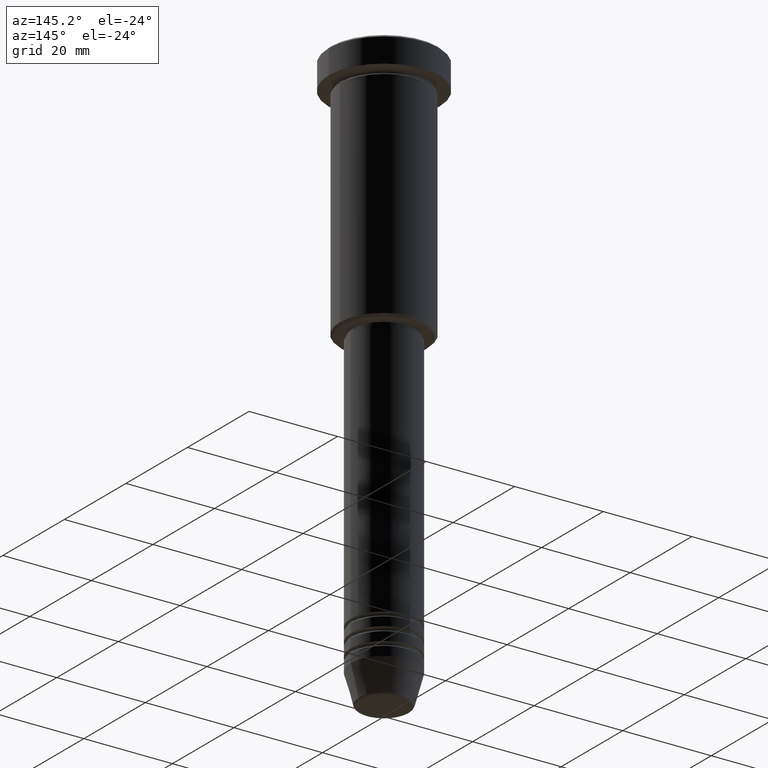
[diagram: clean part render]
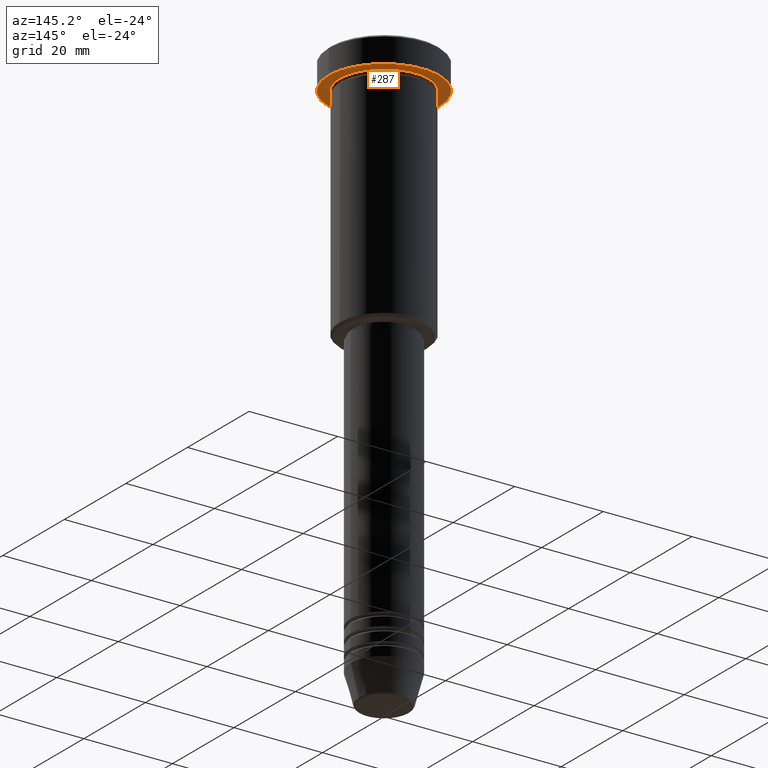
[diagram: same view with one face highlighted and labeled with its STEP entity id]
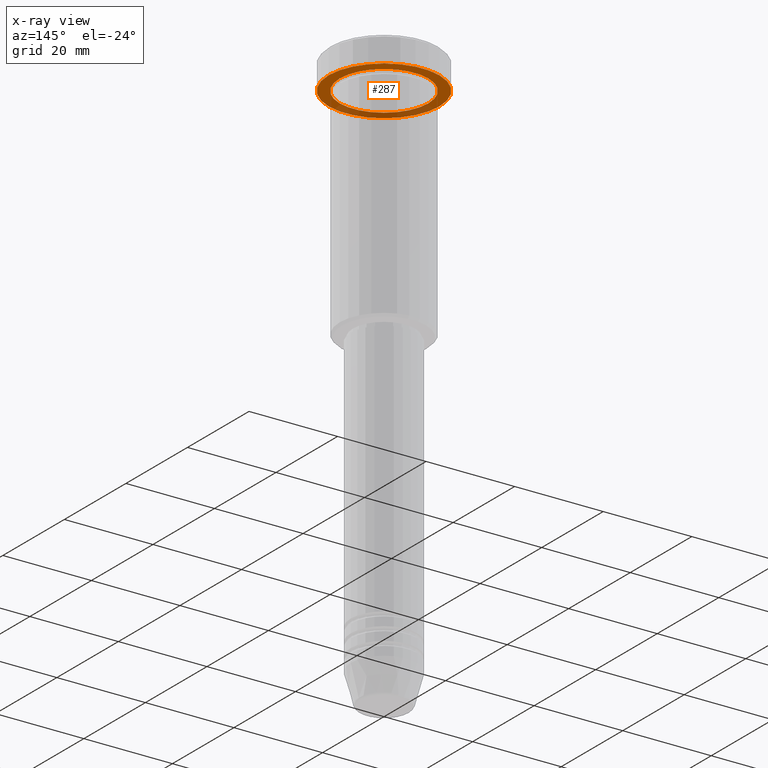
[diagram: x-ray of the same camera — body ghosted, the highlighted face saturated]
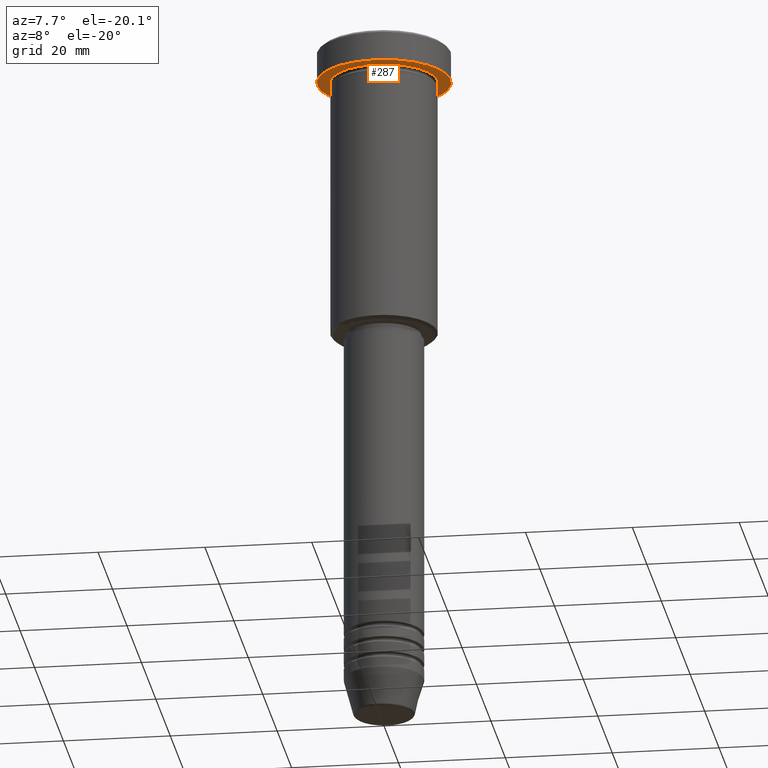
[diagram: same view with one face highlighted and labeled with its STEP entity id]
A machine part, auxiliary view. The second image highlights one B-rep face of the part: STEP entity #287.
The next image is the same camera in x-ray: the body ghosted, the highlighted face saturated — about 28% of this face is hidden behind the body in this view.
A second angle (auxiliary view) of the same face is appended — the face is thin or edge-on in the first view.
In plain terms, the highlighted planar face has unit normal (0, 0, -1).
Its self-contained STEP definition (entity closure, byte-faithful):
#5 = DIRECTION ( 'NONE',  ( -0.000000000000000000, -0.000000000000000000, 1.000000000000000000 ) ) ;
#18 = DIRECTION ( 'NONE',  ( -1.000000000000000000, 0.000000000000000000, -0.000000000000000000 ) ) ;
#25 = EDGE_LOOP ( 'NONE', ( #755, #762 ) ) ;
#47 = CIRCLE ( 'NONE', #717, 10.00000000000000000 ) ;
#61 = CARTESIAN_POINT ( 'NONE',  ( 10.00000000000000000, 1.224646799147353256E-15, -5.999999999999996447 ) ) ;
#115 = CIRCLE ( 'NONE', #768, 12.50000000000000000 ) ;
#116 = PLANE ( 'NONE',  #232 ) ;
#167 = DIRECTION ( 'NONE',  ( -0.000000000000000000, -0.000000000000000000, 1.000000000000000000 ) ) ;
#187 = EDGE_CURVE ( 'NONE', #1022, #882, #115, .T. ) ;
#232 = AXIS2_PLACEMENT_3D ( 'NONE', #1021, #1086, #18 ) ;
#265 = CARTESIAN_POINT ( 'NONE',  ( 0.000000000000000000, 0.000000000000000000, -5.999999999999996447 ) ) ;
#275 = AXIS2_PLACEMENT_3D ( 'NONE', #943, #5, #371 ) ;
#287 = ADVANCED_FACE ( 'NONE', ( #994, #1175 ), #116, .T. ) ;
#321 = DIRECTION ( 'NONE',  ( 1.000000000000000000, 0.000000000000000000, 0.000000000000000000 ) ) ;
#371 = DIRECTION ( 'NONE',  ( -1.000000000000000000, 0.000000000000000000, 0.000000000000000000 ) ) ;
#393 = CARTESIAN_POINT ( 'NONE',  ( 0.000000000000000000, 0.000000000000000000, -5.999999999999996447 ) ) ;
#399 = CARTESIAN_POINT ( 'NONE',  ( 12.50000000000000000, 0.000000000000000000, -5.999999999999996447 ) ) ;
#422 = DIRECTION ( 'NONE',  ( 1.000000000000000000, 0.000000000000000000, 0.000000000000000000 ) ) ;
#440 = AXIS2_PLACEMENT_3D ( 'NONE', #393, #1052, #321 ) ;
#455 = VERTEX_POINT ( 'NONE', #61 ) ;
#469 = VERTEX_POINT ( 'NONE', #788 ) ;
#590 = CARTESIAN_POINT ( 'NONE',  ( -12.50000000000000000, 1.530808498934191521E-15, -5.999999999999996447 ) ) ;
#684 = CARTESIAN_POINT ( 'NONE',  ( 0.000000000000000000, 0.000000000000000000, -5.999999999999996447 ) ) ;
#717 = AXIS2_PLACEMENT_3D ( 'NONE', #684, #1149, #769 ) ;
#755 = ORIENTED_EDGE ( 'NONE', *, *, #894, .F. ) ;
#762 = ORIENTED_EDGE ( 'NONE', *, *, #187, .F. ) ;
#768 = AXIS2_PLACEMENT_3D ( 'NONE', #265, #167, #422 ) ;
#769 = DIRECTION ( 'NONE',  ( -1.000000000000000000, 0.000000000000000000, 0.000000000000000000 ) ) ;
#788 = CARTESIAN_POINT ( 'NONE',  ( -10.00000000000000000, 0.000000000000000000, -5.999999999999996447 ) ) ;
#789 = CIRCLE ( 'NONE', #275, 10.00000000000000000 ) ;
#796 = EDGE_CURVE ( 'NONE', #455, #469, #789, .T. ) ;
#808 = EDGE_CURVE ( 'NONE', #469, #455, #47, .T. ) ;
#815 = EDGE_LOOP ( 'NONE', ( #1013, #895 ) ) ;
#882 = VERTEX_POINT ( 'NONE', #399 ) ;
#894 = EDGE_CURVE ( 'NONE', #882, #1022, #1016, .T. ) ;
#895 = ORIENTED_EDGE ( 'NONE', *, *, #796, .T. ) ;
#943 = CARTESIAN_POINT ( 'NONE',  ( 0.000000000000000000, 0.000000000000000000, -5.999999999999996447 ) ) ;
#994 = FACE_BOUND ( 'NONE', #815, .T. ) ;
#1013 = ORIENTED_EDGE ( 'NONE', *, *, #808, .T. ) ;
#1016 = CIRCLE ( 'NONE', #440, 12.50000000000000000 ) ;
#1021 = CARTESIAN_POINT ( 'NONE',  ( 0.000000000000000000, 12.50000000000000000, -5.999999999999996447 ) ) ;
#1022 = VERTEX_POINT ( 'NONE', #590 ) ;
#1052 = DIRECTION ( 'NONE',  ( -0.000000000000000000, -0.000000000000000000, 1.000000000000000000 ) ) ;
#1086 = DIRECTION ( 'NONE',  ( 0.000000000000000000, 0.000000000000000000, -1.000000000000000000 ) ) ;
#1149 = DIRECTION ( 'NONE',  ( -0.000000000000000000, -0.000000000000000000, 1.000000000000000000 ) ) ;
#1175 = FACE_OUTER_BOUND ( 'NONE', #25, .T. ) ;